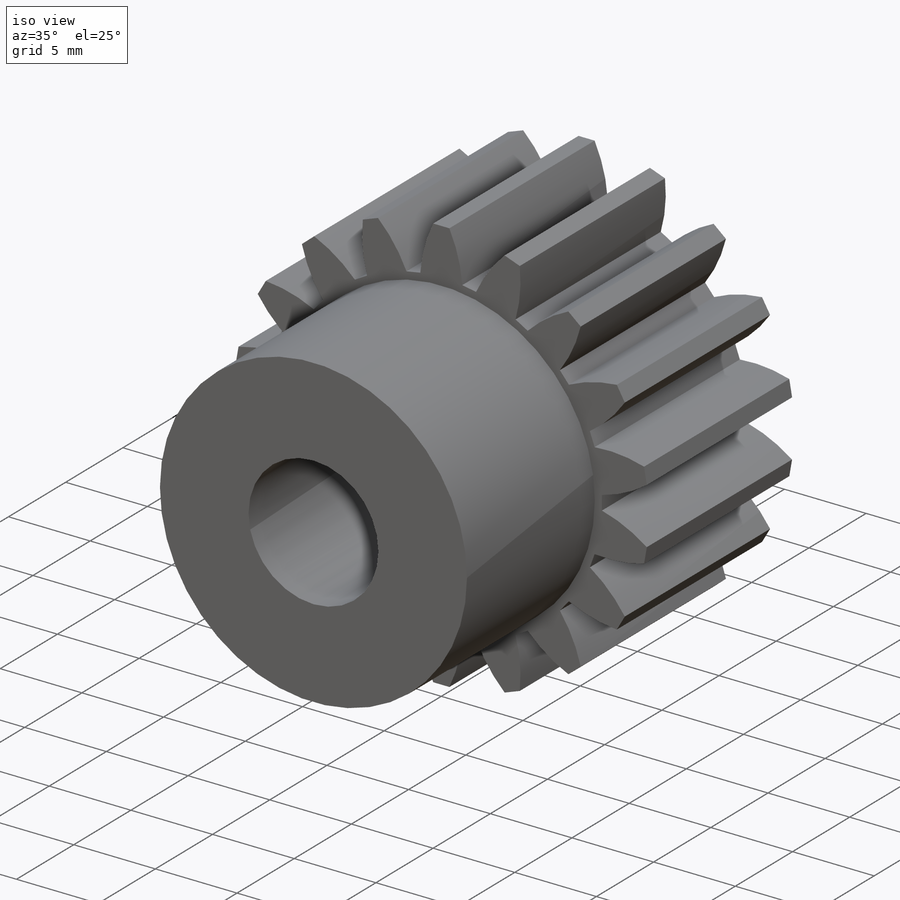
[diagram: iso view]
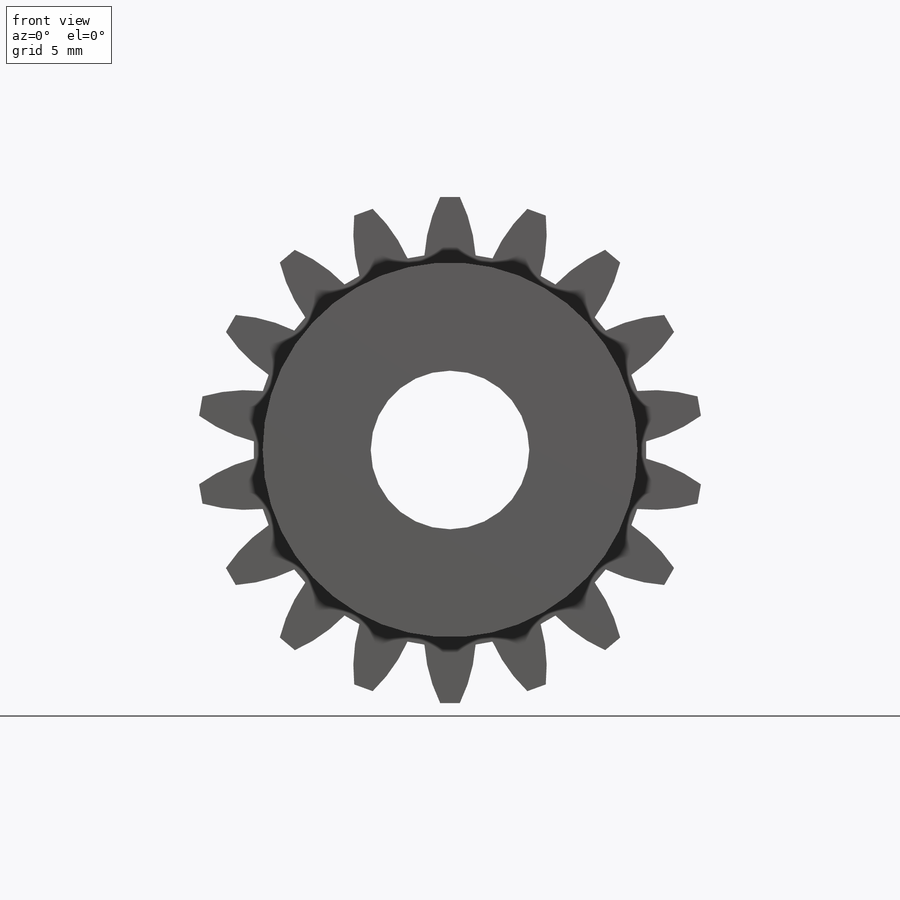
[diagram: front view]
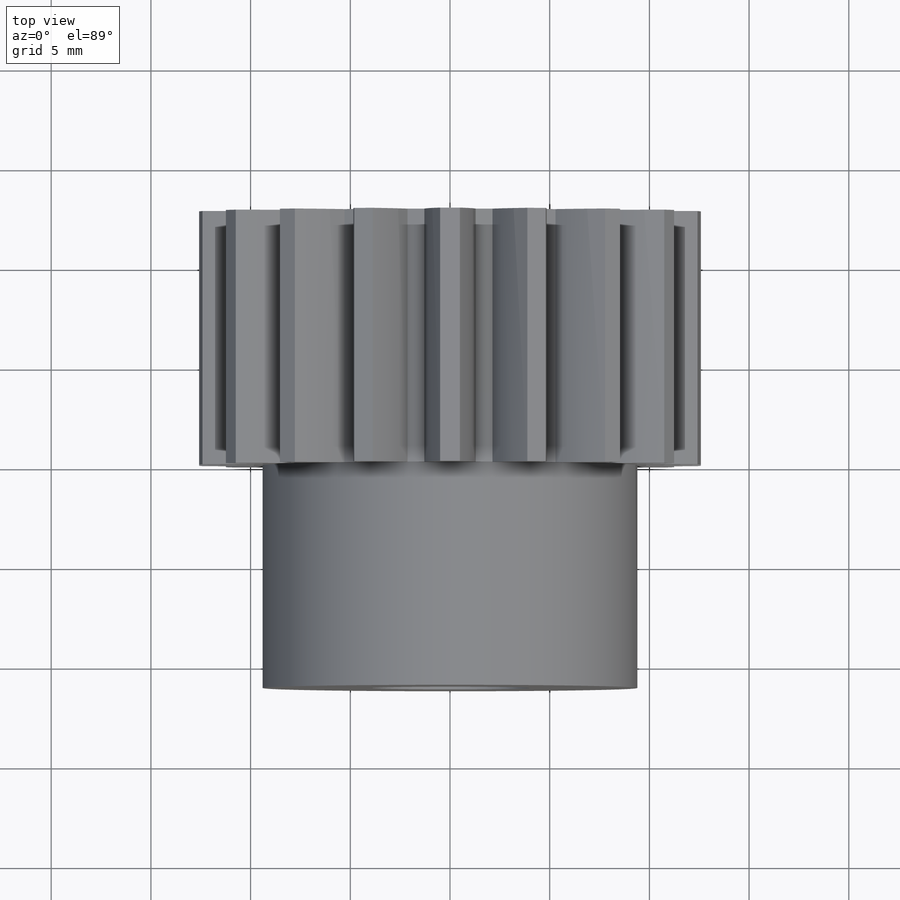
[diagram: top view]
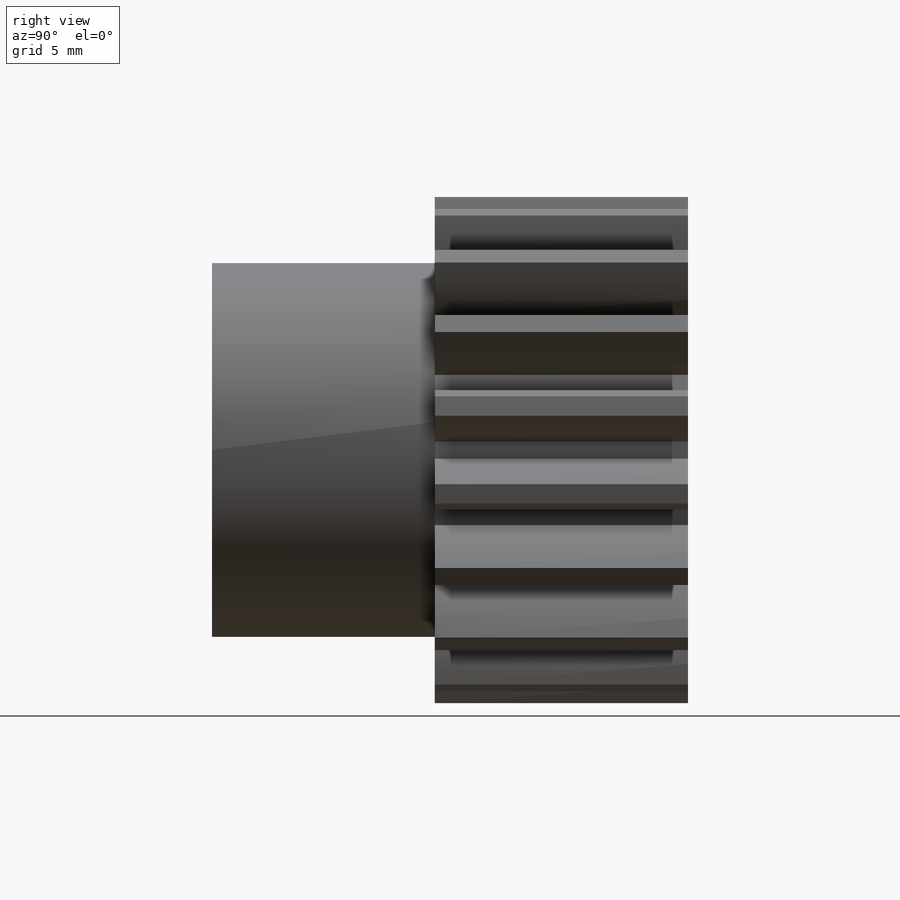
[diagram: right view]
SOLIDWORKS PART (.sldprt)
format: sldprt  version: not decoded by parser v0  size: 541,696 bytes
history: native  units: mm
features: sketch x22, cut_extrude x18, revolve x2, material x1, hole x1 (+16 scaffold rows collapsed)
feature tree (60):
  scaffold x16  (default folders/planes/origin — collapsed)
  material  "Material <not specified>"
  sketch  "Sketch1"
  revolve  "Revolve1"  Angle=360deg
  sketch  "Sketch2"
  cut_extrude  "Cut-Extrude1"  Depth=12.699975mm
  sketch  "Sketch3"
  cut_extrude  "Cut-Extrude2"  Depth=12.699975mm
  sketch  "Sketch4"
  cut_extrude  "Cut-Extrude3"  Depth=12.699975mm
  sketch  "Sketch5"
  cut_extrude  "Cut-Extrude4"  Depth=12.699975mm
  sketch  "Sketch6"
  cut_extrude  "Cut-Extrude5"  Depth=12.699975mm
  sketch  "Sketch7"
  cut_extrude  "Cut-Extrude6"  Depth=12.699975mm
  sketch  "Sketch8"
  cut_extrude  "Cut-Extrude7"  Depth=12.699975mm
  sketch  "Sketch9"
  cut_extrude  "Cut-Extrude8"  Depth=12.699975mm
  sketch  "Sketch10"
  cut_extrude  "Cut-Extrude9"  Depth=12.699975mm
  sketch  "Sketch11"
  cut_extrude  "Cut-Extrude10"  Depth=12.699975mm
  sketch  "Sketch12"
  cut_extrude  "Cut-Extrude11"  Depth=12.699975mm
  sketch  "Sketch13"
  cut_extrude  "Cut-Extrude12"  Depth=12.699975mm
  sketch  "Sketch14"
  cut_extrude  "Cut-Extrude13"  Depth=12.699975mm
  sketch  "Sketch15"
  cut_extrude  "Cut-Extrude14"  Depth=12.699975mm
  sketch  "Sketch16"
  cut_extrude  "Cut-Extrude15"  Depth=12.699975mm
  sketch  "Sketch17"
  cut_extrude  "Cut-Extrude16"  Depth=12.699975mm
  sketch  "Sketch18"
  cut_extrude  "Cut-Extrude17"  Depth=12.699975mm
  sketch  "Sketch19"
  cut_extrude  "Cut-Extrude18"  Depth=12.699975mm
  sketch  "Sketch20"
  revolve  "Revolve2"  Angle=360deg
  hole  "Hole1"  Diameter=7.9502mm Depth=23.875975mm
  sketch  "Sketch22"
  sketch  "Sketch21"  dims[Diameter=7.9502mm Depth=~23.875975mm]
decode coverage: 22 of 43 modeling features carry decoded parameters
note: ~ marks probable driven/reference dimensions
note: suppression state not decoded; provenance and decode notes live in map.json
